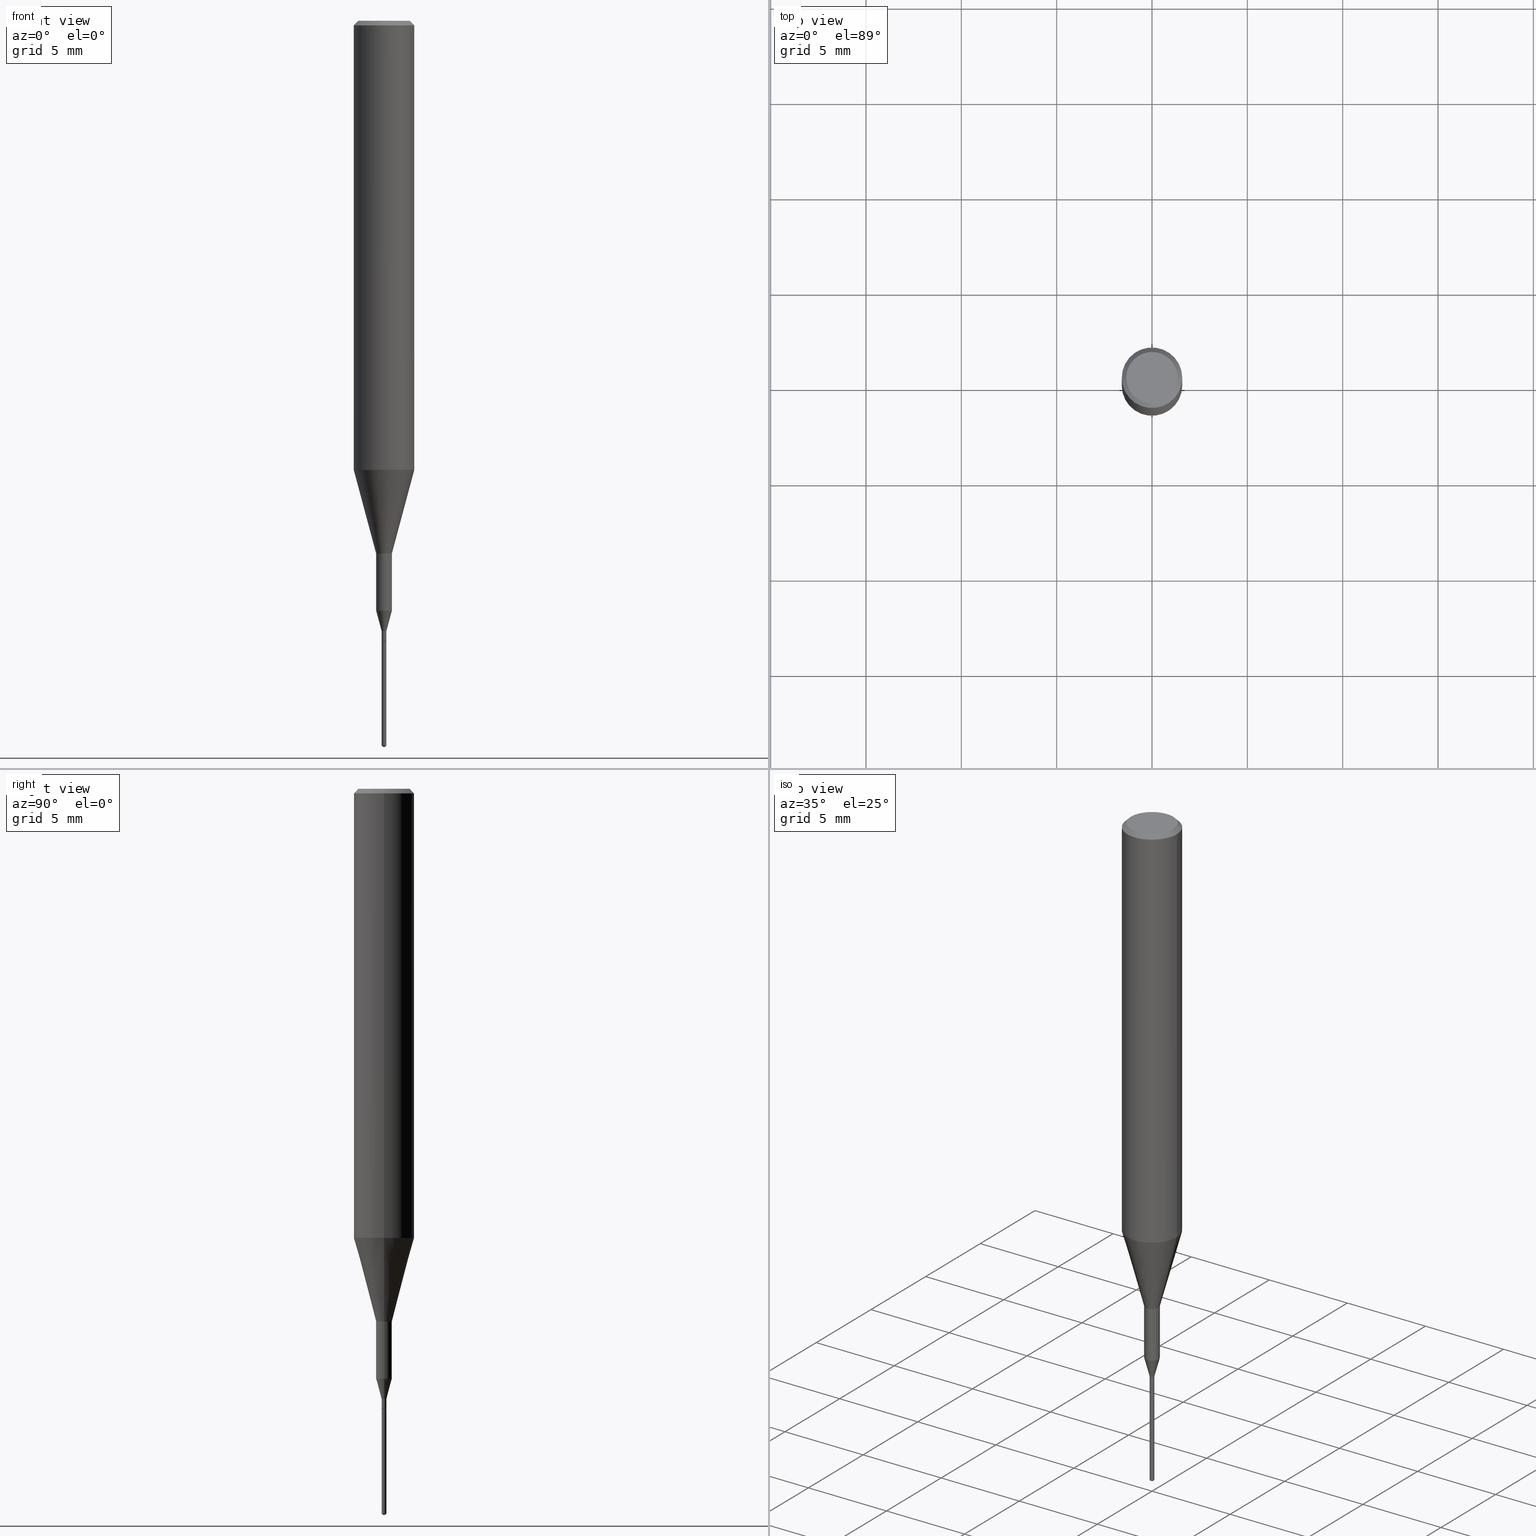
[diagram: canonical four-view strip — front | top / right | iso, engineering-drawing reading convention]
A machine part, canonical four-view strip (front | top / right | iso — engineering-drawing reading convention). The complete STEP part file that produces these views, byte-faithful:
ISO-10303-21;
HEADER;
FILE_DESCRIPTION (( 'STEP AP203' ),
    '1' );
FILE_NAME ('07259.STEP',
    '2024-04-19T13:30:28',
    ( '' ),
    ( '' ),
    'SwSTEP 2.0',
    'SolidWorks 2023',
    '' );
FILE_SCHEMA (( 'CONFIG_CONTROL_DESIGN' ));
ENDSEC;

DATA;
#1 = ADVANCED_FACE ( 'NONE', ( #216 ), #474, .T. ) ;
#2 = DIRECTION ( 'NONE',  ( -2.448441422466597749E-29, 3.487224383137281571E-15, 1.000000000000000000 ) ) ;
#3 = EDGE_CURVE ( 'NONE', #397, #383, #459, .T. ) ;
#4 = AXIS2_PLACEMENT_3D ( 'NONE', #498, #16, #419 ) ;
#5 = CARTESIAN_POINT ( 'NONE',  ( 0.000000000000000000, 0.000000000000000000, 0.000000000000000000 ) ) ;
#6 = FACE_OUTER_BOUND ( 'NONE', #67, .T. ) ;
#7 = EDGE_CURVE ( 'NONE', #307, #517, #443, .T. ) ;
#8 = CARTESIAN_POINT ( 'NONE',  ( 3.130200071916974821E-29, -4.469096113719226630E-15, -1.280000000000000027 ) ) ;
#9 = CARTESIAN_POINT ( 'NONE',  ( 3.128977337513882580E-29, -4.467350373049805126E-15, -1.279500000000000082 ) ) ;
#10 = DIRECTION ( 'NONE',  ( -2.448441422466597749E-29, 3.487224383137281571E-15, 1.000000000000000000 ) ) ;
#11 = AXIS2_PLACEMENT_3D ( 'NONE', #416, #584, #493 ) ;
#12 = DIRECTION ( 'NONE',  ( -6.982962677686265922E-15, -1.000000000000000000, 0.000000000000000000 ) ) ;
#13 = LOCAL_TIME ( 9, 30, 28.00000000000000000, #586 ) ;
#14 = DIRECTION ( 'NONE',  ( -2.445468806185136597E-29, 3.491481338843145583E-15, 1.000000000000000000 ) ) ;
#15 = LINE ( 'NONE', #138, #185 ) ;
#16 = DIRECTION ( 'NONE',  ( -2.445468806185136597E-29, 3.491481338843145583E-15, 1.000000000000000000 ) ) ;
#17 = SECURITY_CLASSIFICATION_LEVEL ( 'unclassified' ) ;
#18 = DIRECTION ( 'NONE',  ( 1.000000000000000000, -6.982962677686266711E-15, 4.875930095424100059E-29 ) ) ;
#19 = EDGE_CURVE ( 'NONE', #222, #269, #352, .T. ) ;
#20 = CYLINDRICAL_SURFACE ( 'NONE', #137, 0.01624999999999999709 ) ;
#21 = ORIENTED_EDGE ( 'NONE', *, *, #479, .T. ) ;
#22 = DIRECTION ( 'NONE',  ( -2.445468806185136597E-29, 3.491481338843145583E-15, 1.000000000000000000 ) ) ;
#23 = FACE_OUTER_BOUND ( 'NONE', #163, .T. ) ;
#24 = ORIENTED_EDGE ( 'NONE', *, *, #45, .F. ) ;
#25 = EDGE_CURVE ( 'NONE', #517, #397, #157, .T. ) ;
#26 = EDGE_CURVE ( 'NONE', #376, #206, #342, .T. ) ;
#27 = CARTESIAN_POINT ( 'NONE',  ( 0.06250000000000011102, -3.674409299134196572E-15, -0.9273926501499395458 ) ) ;
#28 = ADVANCED_FACE ( 'NONE', ( #471 ), #458, .T. ) ;
#29 = VERTEX_POINT ( 'NONE', #490 ) ;
#30 = ORIENTED_EDGE ( 'NONE', *, *, #3, .T. ) ;
#31 =( CONVERSION_BASED_UNIT ( 'INCH', #442 ) LENGTH_UNIT ( ) NAMED_UNIT ( #179 ) );
#32 = LOCAL_TIME ( 9, 30, 28.00000000000000000, #227 ) ;
#33 = VERTEX_POINT ( 'NONE', #538 ) ;
#34 = DATE_AND_TIME ( #590, #32 ) ;
#35 = CARTESIAN_POINT ( 'NONE',  ( 3.081290695793272291E-29, -4.399266486942364120E-15, -1.260000000000000231 ) ) ;
#36 = AXIS2_PLACEMENT_3D ( 'NONE', #345, #382, #427 ) ;
#37 = DIRECTION ( 'NONE',  ( -2.448441422466597749E-29, 3.487224383137281571E-15, 1.000000000000000000 ) ) ;
#38 = VERTEX_POINT ( 'NONE', #544 ) ;
#39 = CYLINDRICAL_SURFACE ( 'NONE', #545, 0.06250000000000005551 ) ;
#40 = CC_DESIGN_PERSON_AND_ORGANIZATION_ASSIGNMENT ( #464, #258, ( #148 ) ) ;
#41 = ORIENTED_EDGE ( 'NONE', *, *, #462, .T. ) ;
#42 = DIRECTION ( 'NONE',  ( -6.982962677686265922E-15, -1.000000000000000000, 0.000000000000000000 ) ) ;
#43 = EDGE_LOOP ( 'NONE', ( #21, #213, #64, #391 ) ) ;
#44 = VECTOR ( 'NONE', #390, 39.37007874015748143 ) ;
#45 = EDGE_CURVE ( 'NONE', #405, #54, #271, .T. ) ;
#46 = AXIS2_PLACEMENT_3D ( 'NONE', #454, #248, #12 ) ;
#47 = CYLINDRICAL_SURFACE ( 'NONE', #151, 0.005000000000000003574 ) ;
#48 = AXIS2_PLACEMENT_3D ( 'NONE', #369, #55, #562 ) ;
#49 = LOCAL_TIME ( 9, 30, 28.00000000000000000, #489 ) ;
#50 = CARTESIAN_POINT ( 'NONE',  ( 3.661501324715846281E-29, -5.225808799001728698E-15, -1.496995696904862116 ) ) ;
#51 = LINE ( 'NONE', #238, #451 ) ;
#52 = ORIENTED_EDGE ( 'NONE', *, *, #504, .T. ) ;
#53 = FACE_OUTER_BOUND ( 'NONE', #125, .T. ) ;
#54 = VERTEX_POINT ( 'NONE', #445 ) ;
#55 = DIRECTION ( 'NONE',  ( -2.445468806185136597E-29, 3.491481338843145583E-15, 1.000000000000000000 ) ) ;
#56 = DIRECTION ( 'NONE',  ( -2.445468806185136597E-29, 3.491481338843145583E-15, 1.000000000000000000 ) ) ;
#57 = DATE_AND_TIME ( #62, #133 ) ;
#58 = ORIENTED_EDGE ( 'NONE', *, *, #240, .F. ) ;
#59 = EDGE_CURVE ( 'NONE', #54, #477, #194, .T. ) ;
#60 = FACE_OUTER_BOUND ( 'NONE', #171, .T. ) ;
#61 = CYLINDRICAL_SURFACE ( 'NONE', #415, 0.01624999999999999709 ) ;
#62 = CALENDAR_DATE ( 2024, 19, 4 ) ;
#63 = EDGE_LOOP ( 'NONE', ( #242, #384, #421, #97 ) ) ;
#64 = ORIENTED_EDGE ( 'NONE', *, *, #413, .F. ) ;
#65 = CARTESIAN_POINT ( 'NONE',  ( 7.076796394983739835E-47, -1.010378970665454992E-32, -2.893840386385196200E-18 ) ) ;
#66 = COORDINATED_UNIVERSAL_TIME_OFFSET ( 5, 0, .BEHIND. ) ;
#67 = EDGE_LOOP ( 'NONE', ( #121, #202 ) ) ;
#68 = CARTESIAN_POINT ( 'NONE',  ( 2.690015686803650369E-29, -3.840629472727460101E-15, -1.100000000000000089 ) ) ;
#69 = DIRECTION ( 'NONE',  ( -2.448441422466597749E-29, 3.487224383137281571E-15, 1.000000000000000000 ) ) ;
#70 = DIRECTION ( 'NONE',  ( 1.000000000000000000, -6.982962677686265922E-15, 0.000000000000000000 ) ) ;
#71 = CC_DESIGN_PERSON_AND_ORGANIZATION_ASSIGNMENT ( #169, #408, ( #486 ) ) ;
#72 = AXIS2_PLACEMENT_3D ( 'NONE', #282, #56, #135 ) ;
#73 = AXIS2_PLACEMENT_3D ( 'NONE', #50, #450, #42 ) ;
#74 = ORIENTED_EDGE ( 'NONE', *, *, #495, .T. ) ;
#75 = ORIENTED_EDGE ( 'NONE', *, *, #218, .T. ) ;
#76 = APPROVAL_STATUS ( 'not_yet_approved' ) ;
#77 = CARTESIAN_POINT ( 'NONE',  ( 2.292627005798582375E-31, -3.273263755165473266E-17, -0.009375000000000069042 ) ) ;
#78 = CARTESIAN_POINT ( 'NONE',  ( 2.292627005798582375E-31, -3.273263755165473266E-17, -0.009375000000000069042 ) ) ;
#79 = VERTEX_POINT ( 'NONE', #232 ) ;
#80 = VERTEX_POINT ( 'NONE', #229 ) ;
#81 = EDGE_LOOP ( 'NONE', ( #530, #164, #188, #310 ) ) ;
#82 = VECTOR ( 'NONE', #518, 39.37007874015748143 ) ;
#83 = ADVANCED_FACE ( 'NONE', ( #409 ), #466, .T. ) ;
#84 = PERSON_AND_ORGANIZATION ( #362, #475 ) ;
#85 = EDGE_CURVE ( 'NONE', #444, #136, #401, .T. ) ;
#86 = CARTESIAN_POINT ( 'NONE',  ( 2.267909797027042920E-29, -3.237974131778804114E-15, -0.9273926501499395458 ) ) ;
#87 = DIRECTION ( 'NONE',  ( 2.445468806185136597E-29, -3.491481338843145583E-15, -1.000000000000000000 ) ) ;
#88 = LOCAL_TIME ( 9, 30, 28.00000000000000000, #66 ) ;
#89 = DIRECTION ( 'NONE',  ( -5.985567269335877382E-15, -0.8571673007021012314, 0.5150380749100724742 ) ) ;
#90 = CARTESIAN_POINT ( 'NONE',  ( -0.004500000000000000527, -4.437121690610021699E-15, -1.280000000000000027 ) ) ;
#91 = FACE_OUTER_BOUND ( 'NONE', #302, .T. ) ;
#92 = CARTESIAN_POINT ( 'NONE',  ( 3.130200071916974821E-29, -4.469096113719226630E-15, -1.280000000000000027 ) ) ;
#93 = FACE_OUTER_BOUND ( 'NONE', #435, .T. ) ;
#94 = CARTESIAN_POINT ( 'NONE',  ( -0.05312499999999999861, 3.873362110279099094E-16, -5.787680772773044021E-18 ) ) ;
#95 = ORIENTED_EDGE ( 'NONE', *, *, #26, .T. ) ;
#96 = EDGE_CURVE ( 'NONE', #444, #79, #212, .T. ) ;
#97 = ORIENTED_EDGE ( 'NONE', *, *, #140, .F. ) ;
#98 = DIRECTION ( 'NONE',  ( -2.445468806185136597E-29, 3.491481338843145583E-15, 1.000000000000000000 ) ) ;
#99 = DIRECTION ( 'NONE',  ( -2.445468806185136597E-29, 3.491481338843145583E-15, 1.000000000000000000 ) ) ;
#100 = CIRCLE ( 'NONE', #514, 0.06250000000000011102 ) ;
#101 = AXIS2_PLACEMENT_3D ( 'NONE', #196, #503, #323 ) ;
#102 = ADVANCED_FACE ( 'NONE', ( #276 ), #20, .T. ) ;
#103 = EDGE_CURVE ( 'NONE', #38, #29, #318, .T. ) ;
#104 = FACE_OUTER_BOUND ( 'NONE', #63, .T. ) ;
#105 = CARTESIAN_POINT ( 'NONE',  ( 3.672662133699897044E-29, -5.230836574705923146E-15, -1.500000000000000222 ) ) ;
#106 = CC_DESIGN_APPROVAL ( #166, ( #148 ) ) ;
#107 = EDGE_LOOP ( 'NONE', ( #220, #30, #270, #346 ) ) ;
#108 = DIRECTION ( 'NONE',  ( -6.982962677686265922E-15, -1.000000000000000000, 0.000000000000000000 ) ) ;
#109 = EDGE_CURVE ( 'NONE', #136, #576, #115, .T. ) ;
#110 = AXIS2_PLACEMENT_3D ( 'NONE', #373, #10, #467 ) ;
#111 = ORIENTED_EDGE ( 'NONE', *, *, #301, .F. ) ;
#112 = DIRECTION ( 'NONE',  ( -0.7071067811865452413, 2.468850131082233000E-15, -0.7071067811865497932 ) ) ;
#113 = DIRECTION ( 'NONE',  ( -2.448441422466597749E-29, 3.487224383137281571E-15, 1.000000000000000000 ) ) ;
#114 =( LENGTH_UNIT ( ) NAMED_UNIT ( * ) SI_UNIT ( $, .METRE. ) );
#115 = LINE ( 'NONE', #396, #129 ) ;
#116 = ORIENTED_EDGE ( 'NONE', *, *, #541, .F. ) ;
#117 = PRODUCT_RELATED_PRODUCT_CATEGORY ( 'detail', '', ( #375 ) ) ;
#118 = EDGE_LOOP ( 'NONE', ( #116, #356, #75, #554 ) ) ;
#119 = ADVANCED_FACE ( 'NONE', ( #573 ), #439, .T. ) ;
#120 = AXIS2_PLACEMENT_3D ( 'NONE', #78, #165, #399 ) ;
#121 = ORIENTED_EDGE ( 'NONE', *, *, #462, .F. ) ;
#122 = PERSON_AND_ORGANIZATION ( #362, #475 ) ;
#123 = CARTESIAN_POINT ( 'NONE',  ( 2.978616290171935481E-29, -4.252674647252150246E-15, -1.218014428414850414 ) ) ;
#124 = ADVANCED_FACE ( 'NONE', ( #241 ), #453, .T. ) ;
#125 = EDGE_LOOP ( 'NONE', ( #525, #74, #563, #589 ) ) ;
#126 = APPROVAL ( #223, 'UNSPECIFIED' ) ;
#127 = CIRCLE ( 'NONE', #120, 0.06250000000000000000 ) ;
#128 = CIRCLE ( 'NONE', #410, 0.005000000000000014849 ) ;
#129 = VECTOR ( 'NONE', #162, 39.37007874015748143 ) ;
#130 = DIRECTION ( 'NONE',  ( 1.000000000000000000, 0.000000000000000000, 0.000000000000000000 ) ) ;
#131 = AXIS2_PLACEMENT_3D ( 'NONE', #123, #587, #180 ) ;
#132 = MANIFOLD_SOLID_BREP ( 'Body-Move/Copy2[1]', #231 ) ;
#133 = LOCAL_TIME ( 9, 30, 28.00000000000000000, #283 ) ;
#134 =( GEOMETRIC_REPRESENTATION_CONTEXT ( 3 ) GLOBAL_UNCERTAINTY_ASSIGNED_CONTEXT ( ( #303 ) ) GLOBAL_UNIT_ASSIGNED_CONTEXT ( ( #31, #273, #476 ) ) REPRESENTATION_CONTEXT ( 'NONE', 'WORKASPACE' ) );
#135 = DIRECTION ( 'NONE',  ( 1.000000000000000000, -6.982962677686266711E-15, 4.875930095424100059E-29 ) ) ;
#136 = VERTEX_POINT ( 'NONE', #326 ) ;
#137 = AXIS2_PLACEMENT_3D ( 'NONE', #201, #516, #252 ) ;
#138 = CARTESIAN_POINT ( 'NONE',  ( 0.06250000000000005551, -4.364351673553920638E-16, 3.047610484872462323E-30 ) ) ;
#139 = CIRCLE ( 'NONE', #4, 0.01624999999999999709 ) ;
#140 = EDGE_CURVE ( 'NONE', #79, #576, #306, .T. ) ;
#141 = DIRECTION ( 'NONE',  ( -2.445468806185136597E-29, 3.491481338843145583E-15, 1.000000000000000000 ) ) ;
#142 = CARTESIAN_POINT ( 'NONE',  ( 0.06250000000000000000, -4.615137624123754923E-16, -0.009375000000000069042 ) ) ;
#143 = DIRECTION ( 'NONE',  ( 1.000000000000000000, -6.982962677686266711E-15, 0.000000000000000000 ) ) ;
#144 = EDGE_CURVE ( 'NONE', #376, #267, #200, .T. ) ;
#145 = ORIENTED_EDGE ( 'NONE', *, *, #26, .F. ) ;
#146 = CARTESIAN_POINT ( 'NONE',  ( -0.004500000000000000527, -4.434472463435912075E-15, -1.280000000000000027 ) ) ;
#147 = DIRECTION ( 'NONE',  ( -1.000000000000000000, 6.982962677686265922E-15, -4.876176775795935793E-29 ) ) ;
#148 = SECURITY_CLASSIFICATION ( '', '', #17 ) ;
#149 = APPROVAL_ROLE ( '' ) ;
#150 = DIRECTION ( 'NONE',  ( -2.445468806185136597E-29, 3.491481338843145583E-15, 1.000000000000000000 ) ) ;
#151 = AXIS2_PLACEMENT_3D ( 'NONE', #5, #321, #275 ) ;
#152 = ORIENTED_EDGE ( 'NONE', *, *, #190, .F. ) ;
#153 = DIRECTION ( 'NONE',  ( -2.448441422466597749E-29, 3.487224383137281571E-15, 1.000000000000000000 ) ) ;
#154 = CARTESIAN_POINT ( 'NONE',  ( 3.130200071916974821E-29, -4.469096113719226630E-15, -1.280000000000000027 ) ) ;
#155 = ORIENTED_EDGE ( 'NONE', *, *, #430, .T. ) ;
#156 = CC_DESIGN_DATE_AND_TIME_ASSIGNMENT ( #292, #395, ( #148 ) ) ;
#157 = LINE ( 'NONE', #527, #177 ) ;
#158 = VECTOR ( 'NONE', #515, 39.37007874015748143 ) ;
#159 = ORIENTED_EDGE ( 'NONE', *, *, #378, .F. ) ;
#160 = DIRECTION ( 'NONE',  ( 1.000000000000000000, -6.982962677686311676E-15, 0.000000000000000000 ) ) ;
#161 = FACE_OUTER_BOUND ( 'NONE', #585, .T. ) ;
#162 = DIRECTION ( 'NONE',  ( 0.7071067811866128539, -2.468850131082941397E-15, 0.7071067811864821806 ) ) ;
#163 = EDGE_LOOP ( 'NONE', ( #155, #407, #293, #575 ) ) ;
#164 = ORIENTED_EDGE ( 'NONE', *, *, #541, .T. ) ;
#165 = DIRECTION ( 'NONE',  ( -2.445468806185136597E-29, 3.491481338843145583E-15, 1.000000000000000000 ) ) ;
#166 = APPROVAL ( #286, 'UNSPECIFIED' ) ;
#167 = ADVANCED_FACE ( 'NONE', ( #53 ), #61, .T. ) ;
#168 = ORIENTED_EDGE ( 'NONE', *, *, #524, .T. ) ;
#169 = PERSON_AND_ORGANIZATION ( #362, #475 ) ;
#170 = DIRECTION ( 'NONE',  ( -2.445468806185136597E-29, 3.491481338843145583E-15, 1.000000000000000000 ) ) ;
#171 = EDGE_LOOP ( 'NONE', ( #52, #582, #447, #226 ) ) ;
#172 = CALENDAR_DATE ( 2024, 19, 4 ) ;
#173 = ADVANCED_FACE ( 'NONE', ( #420 ), #234, .T. ) ;
#174 = ADVANCED_FACE ( 'NONE', ( #93 ), #247, .T. ) ;
#175 = EDGE_LOOP ( 'NONE', ( #314, #304 ) ) ;
#176 = DATE_AND_TIME ( #308, #13 ) ;
#177 = VECTOR ( 'NONE', #398, 39.37007874015748143 ) ;
#178 = CONICAL_SURFACE ( 'NONE', #233, 0.004500000000000000527, 0.7853981633975407606 ) ;
#179 = DIMENSIONAL_EXPONENTS ( 1.000000000000000000, 0.000000000000000000, 0.000000000000000000, 0.000000000000000000, 0.000000000000000000, 0.000000000000000000, 0.000000000000000000 ) ;
#180 = DIRECTION ( 'NONE',  ( 1.000000000000000000, -6.982962677686258033E-15, 0.000000000000000000 ) ) ;
#181 = CC_DESIGN_PERSON_AND_ORGANIZATION_ASSIGNMENT ( #245, #507, ( #349 ) ) ;
#182 = DIRECTION ( 'NONE',  ( -6.982962677686265922E-15, -1.000000000000000000, 0.000000000000000000 ) ) ;
#183 = CARTESIAN_POINT ( 'NONE',  ( -9.272647440831351840E-28, 1.320560130707024342E-13, 37.87007874015748143 ) ) ;
#184 = PLANE ( 'NONE',  #101 ) ;
#185 = VECTOR ( 'NONE', #469, 39.37007874015748143 ) ;
#186 = DIRECTION ( 'NONE',  ( -2.438088387897960049E-29, 3.491481338843145188E-15, 1.000000000000000000 ) ) ;
#187 = EDGE_CURVE ( 'NONE', #33, #269, #496, .T. ) ;
#188 = ORIENTED_EDGE ( 'NONE', *, *, #335, .F. ) ;
#189 = VECTOR ( 'NONE', #113, 39.37007874015748143 ) ;
#190 = EDGE_CURVE ( 'NONE', #79, #517, #502, .T. ) ;
#191 = DIRECTION ( 'NONE',  ( 1.000000000000000000, -6.982962677686344019E-15, 0.000000000000000000 ) ) ;
#192 = DIRECTION ( 'NONE',  ( -2.445468806185136597E-29, 3.491481338843145583E-15, 1.000000000000000000 ) ) ;
#193 = ORIENTED_EDGE ( 'NONE', *, *, #144, .T. ) ;
#194 = CIRCLE ( 'NONE', #73, 0.004999999999999999237 ) ;
#195 = DIRECTION ( 'NONE',  ( 1.000000000000000000, -6.982962677686267499E-15, 4.876176775795936353E-29 ) ) ;
#196 = CARTESIAN_POINT ( 'NONE',  ( 3.130200071916974821E-29, -4.469096113719226630E-15, -1.280000000000000027 ) ) ;
#197 = AXIS2_PLACEMENT_3D ( 'NONE', #506, #153, #108 ) ;
#198 = APPROVAL_DATE_TIME ( #57, #166 ) ;
#199 = CARTESIAN_POINT ( 'NONE',  ( 1.415359278996747967E-46, -2.020757941330909984E-32, -5.787680772770392401E-18 ) ) ;
#200 = CIRCLE ( 'NONE', #379, 0.05312499999999999861 ) ;
#201 = CARTESIAN_POINT ( 'NONE',  ( 0.000000000000000000, 0.000000000000000000, 0.000000000000000000 ) ) ;
#202 = ORIENTED_EDGE ( 'NONE', *, *, #85, .F. ) ;
#203 = VECTOR ( 'NONE', #37, 39.37007874015748143 ) ;
#204 = DIRECTION ( 'NONE',  ( 1.000000000000000000, -6.982962677686224112E-15, 0.000000000000000000 ) ) ;
#205 = DIRECTION ( 'NONE',  ( -6.982962677686266711E-15, -1.000000000000000000, 3.468864327941735815E-15 ) ) ;
#206 = VERTEX_POINT ( 'NONE', #423 ) ;
#207 = CARTESIAN_POINT ( 'NONE',  ( 0.06250000000000011102, -3.674409299134196572E-15, -0.9273926501499395458 ) ) ;
#208 = CARTESIAN_POINT ( 'NONE',  ( -0.01624999999999999709, 1.154631945610162595E-16, -7.993269521664220284E-31 ) ) ;
#209 = AXIS2_PLACEMENT_3D ( 'NONE', #569, #431, #253 ) ;
#210 = VECTOR ( 'NONE', #511, 39.37007874015748143 ) ;
#211 = CALENDAR_DATE ( 2024, 19, 4 ) ;
#212 = LINE ( 'NONE', #90, #237 ) ;
#213 = ORIENTED_EDGE ( 'NONE', *, *, #548, .T. ) ;
#214 = AXIS2_PLACEMENT_3D ( 'NONE', #543, #87, #402 ) ;
#215 = CC_DESIGN_DATE_AND_TIME_ASSIGNMENT ( #176, #483, ( #486 ) ) ;
#216 = FACE_OUTER_BOUND ( 'NONE', #284, .T. ) ;
#217 = MECHANICAL_CONTEXT ( 'NONE', #250, 'mechanical' ) ;
#218 = EDGE_CURVE ( 'NONE', #269, #404, #15, .T. ) ;
#219 = ORIENTED_EDGE ( 'NONE', *, *, #389, .T. ) ;
#220 = ORIENTED_EDGE ( 'NONE', *, *, #495, .F. ) ;
#221 = CARTESIAN_POINT ( 'NONE',  ( 3.081290695793272291E-29, -4.399266486942364120E-15, -1.260000000000000231 ) ) ;
#222 = VERTEX_POINT ( 'NONE', #460 ) ;
#223 = APPROVAL_STATUS ( 'not_yet_approved' ) ;
#224 = APPROVAL_PERSON_ORGANIZATION ( #311, #279, #438 ) ;
#225 = FACE_OUTER_BOUND ( 'NONE', #118, .T. ) ;
#226 = ORIENTED_EDGE ( 'NONE', *, *, #244, .F. ) ;
#227 = COORDINATED_UNIVERSAL_TIME_OFFSET ( 5, 0, .BEHIND. ) ;
#228 = CC_DESIGN_PERSON_AND_ORGANIZATION_ASSIGNMENT ( #361, #317, ( #375 ) ) ;
#229 = CARTESIAN_POINT ( 'NONE',  ( -0.01624999999999999709, -3.931188865428788594E-15, -1.100000000000000089 ) ) ;
#230 = EDGE_LOOP ( 'NONE', ( #387, #539, #501, #393 ) ) ;
#231 = CLOSED_SHELL ( 'NONE', ( #261, #324, #119, #174, #344 ) ) ;
#232 = CARTESIAN_POINT ( 'NONE',  ( -0.004999999999999991430, -4.431823236261800085E-15, -1.279500000000000082 ) ) ;
#233 = AXIS2_PLACEMENT_3D ( 'NONE', #92, #251, #429 ) ;
#234 = CONICAL_SURFACE ( 'NONE', #480, 0.01625000000000000056, 0.2617993877991491858 ) ;
#235 = CARTESIAN_POINT ( 'NONE',  ( 3.661501324715846281E-29, -5.225808799001728698E-15, -1.496995696904862116 ) ) ;
#236 = ADVANCED_FACE ( 'NONE', ( #564 ), #380, .F. ) ;
#237 = VECTOR ( 'NONE', #500, 39.37007874015748143 ) ;
#238 = CARTESIAN_POINT ( 'NONE',  ( 3.665052236019357010E-29, -5.241734381312934415E-15, -1.500000000000000222 ) ) ;
#239 = AXIS2_PLACEMENT_3D ( 'NONE', #561, #22, #204 ) ;
#240 = EDGE_CURVE ( 'NONE', #267, #404, #333, .T. ) ;
#241 = FACE_OUTER_BOUND ( 'NONE', #557, .T. ) ;
#242 = ORIENTED_EDGE ( 'NONE', *, *, #96, .F. ) ;
#243 = DIRECTION ( 'NONE',  ( 1.000000000000000000, -6.982962677686224112E-15, 0.000000000000000000 ) ) ;
#244 = EDGE_CURVE ( 'NONE', #576, #307, #336, .T. ) ;
#245 = PERSON_AND_ORGANIZATION ( #362, #475 ) ;
#246 = EDGE_LOOP ( 'NONE', ( #485, #219, #351, #338 ) ) ;
#247 = CYLINDRICAL_SURFACE ( 'NONE', #110, 0.005000000000000000104 ) ;
#248 = DIRECTION ( 'NONE',  ( -2.448441422466597749E-29, 3.487224383137281571E-15, 1.000000000000000000 ) ) ;
#249 = ORIENTED_EDGE ( 'NONE', *, *, #319, .F. ) ;
#250 = APPLICATION_CONTEXT ( 'configuration controlled 3d designs of mechanical parts and assemblies' ) ;
#251 = DIRECTION ( 'NONE',  ( -2.445468806185136597E-29, 3.491481338843145583E-15, 1.000000000000000000 ) ) ;
#252 = DIRECTION ( 'NONE',  ( 1.000000000000000000, -6.982962677686267499E-15, 4.876176775795936353E-29 ) ) ;
#253 = DIRECTION ( 'NONE',  ( 1.000000000000000000, -6.982962677686258033E-15, 0.000000000000000000 ) ) ;
#254 = DIRECTION ( 'NONE',  ( -2.445468806185136597E-29, 3.491481338843145583E-15, 1.000000000000000000 ) ) ;
#255 = DIRECTION ( 'NONE',  ( -2.445468806185136597E-29, 3.491481338843145583E-15, 1.000000000000000000 ) ) ;
#256 = ORIENTED_EDGE ( 'NONE', *, *, #244, .T. ) ;
#257 = VECTOR ( 'NONE', #312, 39.37007874015748854 ) ;
#258 = PERSON_AND_ORGANIZATION_ROLE ( 'classification_officer' ) ;
#259 = ADVANCED_FACE ( 'NONE', ( #104 ), #178, .T. ) ;
#260 = ORIENTED_EDGE ( 'NONE', *, *, #546, .F. ) ;
#261 = ADVANCED_FACE ( 'NONE', ( #23 ), #331, .T. ) ;
#262 = CIRCLE ( 'NONE', #478, 0.01625000000000000056 ) ;
#263 = CYLINDRICAL_SURFACE ( 'NONE', #11, 0.06250000000000005551 ) ;
#264 = ORIENTED_EDGE ( 'NONE', *, *, #504, .F. ) ;
#265 = DIRECTION ( 'NONE',  ( -0.2588190451025214611, 5.211531920934550253E-15, 0.9659258262890679791 ) ) ;
#266 = CC_DESIGN_APPROVAL ( #126, ( #349 ) ) ;
#267 = VERTEX_POINT ( 'NONE', #296 ) ;
#268 = DIRECTION ( 'NONE',  ( -2.445468806185136597E-29, 3.491481338843145583E-15, 1.000000000000000000 ) ) ;
#269 = VERTEX_POINT ( 'NONE', #27 ) ;
#270 = ORIENTED_EDGE ( 'NONE', *, *, #446, .T. ) ;
#271 = LINE ( 'NONE', #494, #257 ) ;
#272 = APPROVAL_PERSON_ORGANIZATION ( #572, #166, #149 ) ;
#273 =( NAMED_UNIT ( * ) PLANE_ANGLE_UNIT ( ) SI_UNIT ( $, .RADIAN. ) );
#274 = ADVANCED_FACE ( 'NONE', ( #280 ), #39, .T. ) ;
#275 = DIRECTION ( 'NONE',  ( 1.000000000000000000, -6.982962677686265922E-15, 4.876176775795935793E-29 ) ) ;
#276 = FACE_OUTER_BOUND ( 'NONE', #107, .T. ) ;
#277 = AXIS2_PLACEMENT_3D ( 'NONE', #354, #481, #130 ) ;
#278 = FACE_OUTER_BOUND ( 'NONE', #175, .T. ) ;
#279 = APPROVAL ( #76, 'UNSPECIFIED' ) ;
#280 = FACE_OUTER_BOUND ( 'NONE', #81, .T. ) ;
#281 = CARTESIAN_POINT ( 'NONE',  ( 3.130200071916974821E-29, -4.469096113719226630E-15, -1.280000000000000027 ) ) ;
#282 = CARTESIAN_POINT ( 'NONE',  ( 1.415359278996747967E-46, -2.020757941330909984E-32, -5.787680772770392401E-18 ) ) ;
#283 = COORDINATED_UNIVERSAL_TIME_OFFSET ( 5, 0, .BEHIND. ) ;
#284 = EDGE_LOOP ( 'NONE', ( #159, #437, #578, #145 ) ) ;
#285 = CC_DESIGN_APPROVAL ( #279, ( #486 ) ) ;
#286 = APPROVAL_STATUS ( 'not_yet_approved' ) ;
#287 = AXIS2_PLACEMENT_3D ( 'NONE', #367, #99, #143 ) ;
#288 = ORIENTED_EDGE ( 'NONE', *, *, #378, .T. ) ;
#289 = VECTOR ( 'NONE', #112, 39.37007874015748143 ) ;
#290 = DIRECTION ( 'NONE',  ( 1.000000000000000000, -6.982962677686258033E-15, 0.000000000000000000 ) ) ;
#291 = CIRCLE ( 'NONE', #46, 0.005000000000000000104 ) ;
#292 = DATE_AND_TIME ( #211, #88 ) ;
#293 = ORIENTED_EDGE ( 'NONE', *, *, #103, .F. ) ;
#294 = ORIENTED_EDGE ( 'NONE', *, *, #360, .T. ) ;
#295 = DIRECTION ( 'NONE',  ( -2.445468806185136877E-29, 3.491481338843145188E-15, 1.000000000000000000 ) ) ;
#296 = CARTESIAN_POINT ( 'NONE',  ( 0.05312499999999999861, -4.129888592719939842E-16, -5.787680772767651417E-18 ) ) ;
#297 = ORIENTED_EDGE ( 'NONE', *, *, #360, .F. ) ;
#298 = ADVANCED_BREP_SHAPE_REPRESENTATION ( '07259', ( #132, #327, #277 ), #134 ) ;
#299 = ORIENTED_EDGE ( 'NONE', *, *, #7, .T. ) ;
#300 = FACE_OUTER_BOUND ( 'NONE', #43, .T. ) ;
#301 = EDGE_CURVE ( 'NONE', #29, #38, #291, .T. ) ;
#302 = EDGE_LOOP ( 'NONE', ( #297, #580, #487 ) ) ;
#303 = UNCERTAINTY_MEASURE_WITH_UNIT (LENGTH_MEASURE( 1.000000000000000082E-05 ), #31, 'distance_accuracy_value', 'NONE');
#304 = ORIENTED_EDGE ( 'NONE', *, *, #301, .T. ) ;
#305 = VECTOR ( 'NONE', #295, 39.37007874015748143 ) ;
#306 = CIRCLE ( 'NONE', #48, 0.004999999999999991430 ) ;
#307 = VERTEX_POINT ( 'NONE', #424 ) ;
#308 = CALENDAR_DATE ( 2024, 19, 4 ) ;
#309 = CARTESIAN_POINT ( 'NONE',  ( -0.005000000000000014849, -4.397781293208080371E-15, -1.260000000000000231 ) ) ;
#310 = ORIENTED_EDGE ( 'NONE', *, *, #218, .F. ) ;
#311 = PERSON_AND_ORGANIZATION ( #362, #475 ) ;
#312 = DIRECTION ( 'NONE',  ( 6.090539988449712960E-15, 0.8571673007021047841, 0.5150380749100665900 ) ) ;
#313 = AXIS2_PLACEMENT_3D ( 'NONE', #235, #2, #182 ) ;
#314 = ORIENTED_EDGE ( 'NONE', *, *, #103, .T. ) ;
#315 = DESIGN_CONTEXT ( 'detailed design', #456, 'design' ) ;
#316 = AXIS2_PLACEMENT_3D ( 'NONE', #330, #505, #532 ) ;
#317 = PERSON_AND_ORGANIZATION_ROLE ( 'design_owner' ) ;
#318 = CIRCLE ( 'NONE', #455, 0.005000000000000000104 ) ;
#319 = EDGE_CURVE ( 'NONE', #307, #383, #461, .T. ) ;
#320 = DIRECTION ( 'NONE',  ( -2.445468806185136877E-29, 3.491481338843145188E-15, 1.000000000000000000 ) ) ;
#321 = DIRECTION ( 'NONE',  ( -2.445468806185136597E-29, 3.491481338843145583E-15, 1.000000000000000000 ) ) ;
#322 = LINE ( 'NONE', #484, #203 ) ;
#323 = DIRECTION ( 'NONE',  ( 6.982962677686265922E-15, 1.000000000000000000, -3.487224383137281571E-15 ) ) ;
#324 = ADVANCED_FACE ( 'NONE', ( #91 ), #542, .T. ) ;
#325 = CARTESIAN_POINT ( 'NONE',  ( 0.01625000000000000056, -4.366147790764551922E-15, -1.218014428414850414 ) ) ;
#326 = CARTESIAN_POINT ( 'NONE',  ( 0.004500000000000000527, -4.500519445768814483E-15, -1.280000000000000027 ) ) ;
#327 = MANIFOLD_SOLID_BREP ( 'Body-Move/Copy2[2]', #365 ) ;
#328 = DIRECTION ( 'NONE',  ( 1.000000000000000000, -6.982962677686266711E-15, 4.876176775795935232E-29 ) ) ;
#329 = ORIENTED_EDGE ( 'NONE', *, *, #109, .F. ) ;
#330 = CARTESIAN_POINT ( 'NONE',  ( 2.267909797027042920E-29, -3.237974131778804114E-15, -0.9273926501499395458 ) ) ;
#331 = CYLINDRICAL_SURFACE ( 'NONE', #197, 0.005000000000000000104 ) ;
#332 = CARTESIAN_POINT ( 'NONE',  ( 0.01624999999999999709, -1.134731435124018242E-16, 7.923787260668394963E-31 ) ) ;
#333 = LINE ( 'NONE', #142, #82 ) ;
#334 = CARTESIAN_POINT ( 'NONE',  ( -0.01625000000000000056, -4.137211452691134060E-15, -1.218014428414850414 ) ) ;
#335 = EDGE_CURVE ( 'NONE', #404, #206, #552, .T. ) ;
#336 = LINE ( 'NONE', #425, #158 ) ;
#337 = CIRCLE ( 'NONE', #313, 0.004999999999999999237 ) ;
#338 = ORIENTED_EDGE ( 'NONE', *, *, #187, .F. ) ;
#339 = PRODUCT_DEFINITION_SHAPE ( 'NONE', 'NONE',  #486 ) ;
#340 = CARTESIAN_POINT ( 'NONE',  ( 2.978616290171935481E-29, -4.252674647252150246E-15, -1.218014428414850414 ) ) ;
#341 = AXIS2_PLACEMENT_3D ( 'NONE', #510, #385, #343 ) ;
#342 = LINE ( 'NONE', #520, #289 ) ;
#343 = DIRECTION ( 'NONE',  ( 1.000000000000000000, -6.982962677686265922E-15, 4.876176775795935793E-29 ) ) ;
#344 = ADVANCED_FACE ( 'NONE', ( #278 ), #184, .F. ) ;
#345 = CARTESIAN_POINT ( 'NONE',  ( 3.130200071916974821E-29, -4.469096113719226630E-15, -1.280000000000000027 ) ) ;
#346 = ORIENTED_EDGE ( 'NONE', *, *, #389, .F. ) ;
#347 = CARTESIAN_POINT ( 'NONE',  ( -9.272647440831351840E-28, 1.320560130707024342E-13, 37.87007874015748143 ) ) ;
#348 = ORIENTED_EDGE ( 'NONE', *, *, #499, .F. ) ;
#349 = PRODUCT_DEFINITION_FORMATION_WITH_SPECIFIED_SOURCE ( 'ANY', '', #375, .NOT_KNOWN. ) ;
#350 = DIRECTION ( 'NONE',  ( 2.445468806185136597E-29, -3.491481338843145583E-15, -1.000000000000000000 ) ) ;
#351 = ORIENTED_EDGE ( 'NONE', *, *, #19, .T. ) ;
#352 = LINE ( 'NONE', #207, #388 ) ;
#353 = CIRCLE ( 'NONE', #239, 0.004500000000000000527 ) ;
#354 = CARTESIAN_POINT ( 'NONE',  ( 0.000000000000000000, 0.000000000000000000, 0.000000000000000000 ) ) ;
#355 = CC_DESIGN_PERSON_AND_ORGANIZATION_ASSIGNMENT ( #122, #488, ( #349 ) ) ;
#356 = ORIENTED_EDGE ( 'NONE', *, *, #187, .T. ) ;
#357 = DATE_AND_TIME ( #172, #49 ) ;
#358 = AXIS2_PLACEMENT_3D ( 'NONE', #9, #141, #191 ) ;
#359 = CARTESIAN_POINT ( 'NONE',  ( 2.267909797027042920E-29, -3.237974131778804114E-15, -0.9273926501499395458 ) ) ;
#360 = EDGE_CURVE ( 'NONE', #405, #477, #51, .T. ) ;
#361 = PERSON_AND_ORGANIZATION ( #362, #475 ) ;
#362 = PERSON ( 'UNSPECIFIED', 'UNSPECIFIED', 'UNSPECIFIED', ('UNSPECIFIED'), ('UNSPECIFIED'), ('UNSPECIFIED') ) ;
#363 = AXIS2_PLACEMENT_3D ( 'NONE', #8, #186, #370 ) ;
#364 = DIRECTION ( 'NONE',  ( -6.982962677686266711E-15, -1.000000000000000000, 3.468864327941735815E-15 ) ) ;
#365 = CLOSED_SHELL ( 'NONE', ( #1, #274, #509, #167, #173, #448, #124, #403, #259, #422, #28, #102, #83, #558, #571, #236 ) ) ;
#366 = AXIS2_PLACEMENT_3D ( 'NONE', #359, #414, #70 ) ;
#367 = CARTESIAN_POINT ( 'NONE',  ( 2.292627005798582375E-31, -3.273263755165473266E-17, -0.009375000000000069042 ) ) ;
#368 = AXIS2_PLACEMENT_3D ( 'NONE', #463, #549, #465 ) ;
#369 = CARTESIAN_POINT ( 'NONE',  ( 3.128977337513882580E-29, -4.467350373049805126E-15, -1.279500000000000082 ) ) ;
#370 = DIRECTION ( 'NONE',  ( 1.000000000000000000, -6.982962677686265922E-15, 4.876176775795935793E-29 ) ) ;
#371 = VECTOR ( 'NONE', #265, 39.37007874015748143 ) ;
#372 = LINE ( 'NONE', #208, #44 ) ;
#373 = CARTESIAN_POINT ( 'NONE',  ( 3.130200071916974821E-29, -4.469096113719226630E-15, -1.280000000000000027 ) ) ;
#374 = CARTESIAN_POINT ( 'NONE',  ( 0.01625000000000000056, -4.366147790764551922E-15, -1.218014428414850414 ) ) ;
#375 = PRODUCT ( '07259', '07259', '', ( #217 ) ) ;
#376 = VERTEX_POINT ( 'NONE', #94 ) ;
#377 = DIRECTION ( 'NONE',  ( 2.438088387897960049E-29, -3.491481338843145188E-15, -1.000000000000000000 ) ) ;
#378 = EDGE_CURVE ( 'NONE', #267, #376, #565, .T. ) ;
#379 = AXIS2_PLACEMENT_3D ( 'NONE', #199, #255, #18 ) ;
#380 = PLANE ( 'NONE',  #508 ) ;
#381 = SHAPE_DEFINITION_REPRESENTATION ( #339, #298 ) ;
#382 = DIRECTION ( 'NONE',  ( -2.445468806185136597E-29, 3.491481338843145583E-15, 1.000000000000000000 ) ) ;
#383 = VERTEX_POINT ( 'NONE', #325 ) ;
#384 = ORIENTED_EDGE ( 'NONE', *, *, #85, .T. ) ;
#385 = DIRECTION ( 'NONE',  ( -2.445468806185136597E-29, 3.491481338843145583E-15, 1.000000000000000000 ) ) ;
#386 = CARTESIAN_POINT ( 'NONE',  ( 0.000000000000000000, 0.000000000000000000, 0.000000000000000000 ) ) ;
#387 = ORIENTED_EDGE ( 'NONE', *, *, #25, .F. ) ;
#388 = VECTOR ( 'NONE', #566, 39.37007874015748143 ) ;
#389 = EDGE_CURVE ( 'NONE', #80, #222, #139, .T. ) ;
#390 = DIRECTION ( 'NONE',  ( -2.445468806185136877E-29, 3.491481338843145188E-15, 1.000000000000000000 ) ) ;
#391 = ORIENTED_EDGE ( 'NONE', *, *, #19, .F. ) ;
#392 = CIRCLE ( 'NONE', #551, 0.01624999999999999709 ) ;
#393 = ORIENTED_EDGE ( 'NONE', *, *, #3, .F. ) ;
#394 = CONICAL_SURFACE ( 'NONE', #214, 0.06250000000000000000, 0.7853981633974450594 ) ;
#395 = DATE_TIME_ROLE ( 'classification_date' ) ;
#396 = CARTESIAN_POINT ( 'NONE',  ( 0.004500000000000000527, -4.500519445768814483E-15, -1.280000000000000027 ) ) ;
#397 = VERTEX_POINT ( 'NONE', #334 ) ;
#398 = DIRECTION ( 'NONE',  ( -0.2588190451025205174, 5.211531920934544731E-15, 0.9659258262890684232 ) ) ;
#399 = DIRECTION ( 'NONE',  ( 1.000000000000000000, -6.982962677686266711E-15, 0.000000000000000000 ) ) ;
#400 = EDGE_LOOP ( 'NONE', ( #193, #288 ) ) ;
#401 = CIRCLE ( 'NONE', #36, 0.004500000000000000527 ) ;
#402 = DIRECTION ( 'NONE',  ( -1.000000000000000000, 6.982962677686266711E-15, 0.000000000000000000 ) ) ;
#403 = ADVANCED_FACE ( 'NONE', ( #6 ), #512, .F. ) ;
#404 = VERTEX_POINT ( 'NONE', #550 ) ;
#405 = VERTEX_POINT ( 'NONE', #105 ) ;
#406 = CARTESIAN_POINT ( 'NONE',  ( -0.06250000000000005551, 4.440892098500630106E-16, -3.074334431409318916E-30 ) ) ;
#407 = ORIENTED_EDGE ( 'NONE', *, *, #499, .T. ) ;
#408 = PERSON_AND_ORGANIZATION_ROLE ( 'creator' ) ;
#409 = FACE_OUTER_BOUND ( 'NONE', #246, .T. ) ;
#410 = AXIS2_PLACEMENT_3D ( 'NONE', #221, #268, #581 ) ;
#411 = ORIENTED_EDGE ( 'NONE', *, *, #59, .F. ) ;
#412 = APPLICATION_PROTOCOL_DEFINITION ( 'international standard', 'config_control_design', 1994, #456 ) ;
#413 = EDGE_CURVE ( 'NONE', #269, #33, #100, .T. ) ;
#414 = DIRECTION ( 'NONE',  ( -2.445468806185136597E-29, 3.491481338843145583E-15, 1.000000000000000000 ) ) ;
#415 = AXIS2_PLACEMENT_3D ( 'NONE', #386, #192, #195 ) ;
#416 = CARTESIAN_POINT ( 'NONE',  ( 0.000000000000000000, 0.000000000000000000, 0.000000000000000000 ) ) ;
#417 = DIRECTION ( 'NONE',  ( 1.000000000000000000, -6.982962677686265922E-15, 0.000000000000000000 ) ) ;
#418 = AXIS2_PLACEMENT_3D ( 'NONE', #35, #170, #160 ) ;
#419 = DIRECTION ( 'NONE',  ( 1.000000000000000000, -6.982962677686259611E-15, 0.000000000000000000 ) ) ;
#420 = FACE_OUTER_BOUND ( 'NONE', #533, .T. ) ;
#421 = ORIENTED_EDGE ( 'NONE', *, *, #109, .T. ) ;
#422 = ADVANCED_FACE ( 'NONE', ( #491 ), #47, .T. ) ;
#423 = CARTESIAN_POINT ( 'NONE',  ( -0.06250000000000000000, -1.191264174815165938E-15, -0.009375000000000069042 ) ) ;
#424 = CARTESIAN_POINT ( 'NONE',  ( 0.005000000000000014849, -4.434181300330795770E-15, -1.260000000000000231 ) ) ;
#425 = CARTESIAN_POINT ( 'NONE',  ( 0.005000000000000003574, -3.491481338843135327E-17, 2.438088387897969736E-31 ) ) ;
#426 = DIRECTION ( 'NONE',  ( 0.2588190451025205174, 1.565188264969628476E-15, 0.9659258262890684232 ) ) ;
#427 = DIRECTION ( 'NONE',  ( 1.000000000000000000, -6.982962677686224112E-15, 0.000000000000000000 ) ) ;
#428 = EDGE_LOOP ( 'NONE', ( #152, #473, #256, #260 ) ) ;
#429 = DIRECTION ( 'NONE',  ( 1.000000000000000000, -6.982962677686224112E-15, 0.000000000000000000 ) ) ;
#430 = EDGE_CURVE ( 'NONE', #477, #54, #337, .T. ) ;
#431 = DIRECTION ( 'NONE',  ( -2.445468806185136597E-29, 3.491481338843145583E-15, 1.000000000000000000 ) ) ;
#432 = DIRECTION ( 'NONE',  ( 1.000000000000000000, -6.982962677686259611E-15, 0.000000000000000000 ) ) ;
#433 = DIRECTION ( 'NONE',  ( 1.000000000000000000, -6.982962677686258033E-15, 0.000000000000000000 ) ) ;
#434 = ORIENTED_EDGE ( 'NONE', *, *, #531, .T. ) ;
#435 = EDGE_LOOP ( 'NONE', ( #348, #583, #434, #111 ) ) ;
#436 = APPLICATION_PROTOCOL_DEFINITION ( 'international standard', 'config_control_design', 1994, #250 ) ;
#437 = ORIENTED_EDGE ( 'NONE', *, *, #240, .T. ) ;
#438 = APPROVAL_ROLE ( '' ) ;
#439 = CONICAL_SURFACE ( 'NONE', #513, 65.52281426576575996, 1.029744258676636548 ) ;
#440 = EDGE_CURVE ( 'NONE', #383, #397, #262, .T. ) ;
#441 = ORIENTED_EDGE ( 'NONE', *, *, #25, .T. ) ;
#442 = LENGTH_MEASURE_WITH_UNIT ( LENGTH_MEASURE( 0.02539999999999999897 ), #114 );
#443 = CIRCLE ( 'NONE', #418, 0.005000000000000014849 ) ;
#444 = VERTEX_POINT ( 'NONE', #146 ) ;
#445 = CARTESIAN_POINT ( 'NONE',  ( 3.552713678804161195E-17, 0.004999999999994772515, -1.496995696904862116 ) ) ;
#446 = EDGE_CURVE ( 'NONE', #383, #222, #472, .T. ) ;
#447 = ORIENTED_EDGE ( 'NONE', *, *, #7, .F. ) ;
#448 = ADVANCED_FACE ( 'NONE', ( #60 ), #555, .T. ) ;
#449 = APPROVAL_ROLE ( '' ) ;
#450 = DIRECTION ( 'NONE',  ( -2.448441422466597749E-29, 3.487224383137281571E-15, 1.000000000000000000 ) ) ;
#451 = VECTOR ( 'NONE', #89, 39.37007874015748854 ) ;
#452 = DIRECTION ( 'NONE',  ( -2.445468806185136597E-29, 3.491481338843145583E-15, 1.000000000000000000 ) ) ;
#453 = CONICAL_SURFACE ( 'NONE', #560, 0.004500000000000000527, 0.7853981633975407606 ) ;
#454 = CARTESIAN_POINT ( 'NONE',  ( 3.130200071916974821E-29, -4.469096113719226630E-15, -1.280000000000000027 ) ) ;
#455 = AXIS2_PLACEMENT_3D ( 'NONE', #154, #519, #523 ) ;
#456 = APPLICATION_CONTEXT ( 'configuration controlled 3d designs of mechanical parts and assemblies' ) ;
#457 = AXIS2_PLACEMENT_3D ( 'NONE', #183, #556, #364 ) ;
#458 = CONICAL_SURFACE ( 'NONE', #131, 0.01625000000000000056, 0.2617993877991491858 ) ;
#459 = CIRCLE ( 'NONE', #209, 0.01625000000000000056 ) ;
#460 = CARTESIAN_POINT ( 'NONE',  ( 0.01624999999999999709, -3.954102616239861778E-15, -1.100000000000000089 ) ) ;
#461 = LINE ( 'NONE', #374, #529 ) ;
#462 = EDGE_CURVE ( 'NONE', #136, #444, #353, .T. ) ;
#463 = CARTESIAN_POINT ( 'NONE',  ( 2.267909797027042920E-29, -3.237974131778804114E-15, -0.9273926501499395458 ) ) ;
#464 = PERSON_AND_ORGANIZATION ( #362, #475 ) ;
#465 = DIRECTION ( 'NONE',  ( 1.000000000000000000, -6.982962677686265922E-15, 0.000000000000000000 ) ) ;
#466 = CONICAL_SURFACE ( 'NONE', #366, 0.06250000000000011102, 0.2617993877991501850 ) ;
#467 = DIRECTION ( 'NONE',  ( -6.982962677686265922E-15, -1.000000000000000000, 0.000000000000000000 ) ) ;
#468 = CARTESIAN_POINT ( 'NONE',  ( -3.491481338839468973E-17, -0.005000000000005223356, -1.496995696904862116 ) ) ;
#469 = DIRECTION ( 'NONE',  ( -2.445468806185136877E-29, 3.491481338843145188E-15, 1.000000000000000000 ) ) ;
#470 = ORIENTED_EDGE ( 'NONE', *, *, #96, .T. ) ;
#471 = FACE_OUTER_BOUND ( 'NONE', #230, .T. ) ;
#472 = LINE ( 'NONE', #332, #305 ) ;
#473 = ORIENTED_EDGE ( 'NONE', *, *, #140, .T. ) ;
#474 = CONICAL_SURFACE ( 'NONE', #526, 0.06250000000000000000, 0.7853981633974450594 ) ;
#475 = ORGANIZATION ( 'UNSPECIFIED', 'UNSPECIFIED', '' ) ;
#476 =( NAMED_UNIT ( * ) SI_UNIT ( $, .STERADIAN. ) SOLID_ANGLE_UNIT ( ) );
#477 = VERTEX_POINT ( 'NONE', #468 ) ;
#478 = AXIS2_PLACEMENT_3D ( 'NONE', #497, #14, #290 ) ;
#479 = EDGE_CURVE ( 'NONE', #222, #80, #392, .T. ) ;
#480 = AXIS2_PLACEMENT_3D ( 'NONE', #340, #150, #433 ) ;
#481 = DIRECTION ( 'NONE',  ( 0.000000000000000000, 0.000000000000000000, 1.000000000000000000 ) ) ;
#482 = EDGE_LOOP ( 'NONE', ( #24, #294, #411 ) ) ;
#483 = DATE_TIME_ROLE ( 'creation_date' ) ;
#484 = CARTESIAN_POINT ( 'NONE',  ( -3.491481338840003303E-17, -0.005000000000004468752, -1.280000000000000027 ) ) ;
#485 = ORIENTED_EDGE ( 'NONE', *, *, #548, .F. ) ;
#486 = PRODUCT_DEFINITION ( 'UNKNOWN', '', #349, #315 ) ;
#487 = ORIENTED_EDGE ( 'NONE', *, *, #430, .F. ) ;
#488 = PERSON_AND_ORGANIZATION_ROLE ( 'creator' ) ;
#489 = COORDINATED_UNIVERSAL_TIME_OFFSET ( 5, 0, .BEHIND. ) ;
#490 = CARTESIAN_POINT ( 'NONE',  ( 3.552713678804164892E-17, 0.004999999999995530589, -1.280000000000000027 ) ) ;
#491 = FACE_OUTER_BOUND ( 'NONE', #428, .T. ) ;
#492 = CC_DESIGN_SECURITY_CLASSIFICATION ( #148, ( #349 ) ) ;
#493 = DIRECTION ( 'NONE',  ( 1.000000000000000000, -6.982962677686266711E-15, 4.876176775795935232E-29 ) ) ;
#494 = CARTESIAN_POINT ( 'NONE',  ( 3.672728863519792168E-29, -5.230836574705921568E-15, -1.500000000000000222 ) ) ;
#495 = EDGE_CURVE ( 'NONE', #397, #80, #372, .T. ) ;
#496 = CIRCLE ( 'NONE', #368, 0.06250000000000011102 ) ;
#497 = CARTESIAN_POINT ( 'NONE',  ( 2.978616290171935481E-29, -4.252674647252150246E-15, -1.218014428414850414 ) ) ;
#498 = CARTESIAN_POINT ( 'NONE',  ( 2.690015686803650369E-29, -3.840629472727460101E-15, -1.100000000000000089 ) ) ;
#499 = EDGE_CURVE ( 'NONE', #54, #29, #567, .T. ) ;
#500 = DIRECTION ( 'NONE',  ( -0.7071067811866128539, 7.493145998870590818E-15, 0.7071067811864821806 ) ) ;
#501 = ORIENTED_EDGE ( 'NONE', *, *, #319, .T. ) ;
#502 = LINE ( 'NONE', #559, #210 ) ;
#503 = DIRECTION ( 'NONE',  ( 2.448441422466597469E-29, -3.487224383137281571E-15, -1.000000000000000000 ) ) ;
#504 = EDGE_CURVE ( 'NONE', #576, #79, #535, .T. ) ;
#505 = DIRECTION ( 'NONE',  ( -2.445468806185136597E-29, 3.491481338843145583E-15, 1.000000000000000000 ) ) ;
#506 = CARTESIAN_POINT ( 'NONE',  ( 3.130200071916974821E-29, -4.469096113719226630E-15, -1.280000000000000027 ) ) ;
#507 = PERSON_AND_ORGANIZATION_ROLE ( 'design_supplier' ) ;
#508 = AXIS2_PLACEMENT_3D ( 'NONE', #65, #377, #147 ) ;
#509 = ADVANCED_FACE ( 'NONE', ( #300 ), #574, .T. ) ;
#510 = CARTESIAN_POINT ( 'NONE',  ( 0.000000000000000000, 0.000000000000000000, 0.000000000000000000 ) ) ;
#511 = DIRECTION ( 'NONE',  ( -2.445468806185136877E-29, 3.491481338843145188E-15, 1.000000000000000000 ) ) ;
#512 = PLANE ( 'NONE',  #363 ) ;
#513 = AXIS2_PLACEMENT_3D ( 'NONE', #347, #69, #205 ) ;
#514 = AXIS2_PLACEMENT_3D ( 'NONE', #86, #452, #417 ) ;
#515 = DIRECTION ( 'NONE',  ( -2.445468806185136877E-29, 3.491481338843145188E-15, 1.000000000000000000 ) ) ;
#516 = DIRECTION ( 'NONE',  ( -2.445468806185136597E-29, 3.491481338843145583E-15, 1.000000000000000000 ) ) ;
#517 = VERTEX_POINT ( 'NONE', #309 ) ;
#518 = DIRECTION ( 'NONE',  ( 0.7071067811865452413, -7.319954787623248157E-15, -0.7071067811865497932 ) ) ;
#519 = DIRECTION ( 'NONE',  ( -2.448441422466597749E-29, 3.487224383137281571E-15, 1.000000000000000000 ) ) ;
#520 = CARTESIAN_POINT ( 'NONE',  ( -0.06250000000000000000, 4.037025298037369491E-16, -0.009375000000000069042 ) ) ;
#521 = CARTESIAN_POINT ( 'NONE',  ( 3.552713678803629946E-17, 0.004999999999995530589, -1.280000000000000027 ) ) ;
#522 = DIRECTION ( 'NONE',  ( -1.000000000000000000, 6.982962677686266711E-15, 0.000000000000000000 ) ) ;
#523 = DIRECTION ( 'NONE',  ( -6.982962677686265922E-15, -1.000000000000000000, 0.000000000000000000 ) ) ;
#524 = EDGE_CURVE ( 'NONE', #206, #404, #127, .T. ) ;
#525 = ORIENTED_EDGE ( 'NONE', *, *, #440, .T. ) ;
#526 = AXIS2_PLACEMENT_3D ( 'NONE', #77, #350, #522 ) ;
#527 = CARTESIAN_POINT ( 'NONE',  ( -0.01625000000000000056, -4.137211452691134060E-15, -1.218014428414850414 ) ) ;
#528 = CARTESIAN_POINT ( 'NONE',  ( -0.06250000000000011102, -2.793884921928740709E-15, -0.9273926501499395458 ) ) ;
#529 = VECTOR ( 'NONE', #426, 39.37007874015748143 ) ;
#530 = ORIENTED_EDGE ( 'NONE', *, *, #413, .T. ) ;
#531 = EDGE_CURVE ( 'NONE', #477, #38, #322, .T. ) ;
#532 = DIRECTION ( 'NONE',  ( 1.000000000000000000, -6.982962677686265922E-15, 0.000000000000000000 ) ) ;
#533 = EDGE_LOOP ( 'NONE', ( #299, #441, #536, #249 ) ) ;
#534 = VECTOR ( 'NONE', #320, 39.37007874015748143 ) ;
#535 = CIRCLE ( 'NONE', #358, 0.004999999999999991430 ) ;
#536 = ORIENTED_EDGE ( 'NONE', *, *, #440, .F. ) ;
#537 = APPROVAL_DATE_TIME ( #357, #126 ) ;
#538 = CARTESIAN_POINT ( 'NONE',  ( -0.06250000000000011102, -2.793884921928740709E-15, -0.9273926501499395458 ) ) ;
#539 = ORIENTED_EDGE ( 'NONE', *, *, #546, .T. ) ;
#540 = CARTESIAN_POINT ( 'NONE',  ( 0.004999999999999991430, -4.502265186438236775E-15, -1.279500000000000082 ) ) ;
#541 = EDGE_CURVE ( 'NONE', #33, #206, #577, .T. ) ;
#542 = CONICAL_SURFACE ( 'NONE', #457, 65.52281426576575996, 1.029744258676636548 ) ;
#543 = CARTESIAN_POINT ( 'NONE',  ( 2.292627005798582375E-31, -3.273263755165473266E-17, -0.009375000000000069042 ) ) ;
#544 = CARTESIAN_POINT ( 'NONE',  ( -3.491481338840003303E-17, -0.005000000000004468752, -1.280000000000000027 ) ) ;
#545 = AXIS2_PLACEMENT_3D ( 'NONE', #568, #547, #328 ) ;
#546 = EDGE_CURVE ( 'NONE', #517, #307, #128, .T. ) ;
#547 = DIRECTION ( 'NONE',  ( -2.445468806185136597E-29, 3.491481338843145583E-15, 1.000000000000000000 ) ) ;
#548 = EDGE_CURVE ( 'NONE', #80, #33, #570, .T. ) ;
#549 = DIRECTION ( 'NONE',  ( -2.445468806185136597E-29, 3.491481338843145583E-15, 1.000000000000000000 ) ) ;
#550 = CARTESIAN_POINT ( 'NONE',  ( 0.06250000000000000000, -4.691678049070464390E-16, -0.009375000000000069042 ) ) ;
#551 = AXIS2_PLACEMENT_3D ( 'NONE', #68, #254, #432 ) ;
#552 = CIRCLE ( 'NONE', #287, 0.06250000000000000000 ) ;
#553 = ORIENTED_EDGE ( 'NONE', *, *, #144, .F. ) ;
#554 = ORIENTED_EDGE ( 'NONE', *, *, #524, .F. ) ;
#555 = CYLINDRICAL_SURFACE ( 'NONE', #341, 0.005000000000000003574 ) ;
#556 = DIRECTION ( 'NONE',  ( -2.448441422466597749E-29, 3.487224383137281571E-15, 1.000000000000000000 ) ) ;
#557 = EDGE_LOOP ( 'NONE', ( #41, #470, #264, #329 ) ) ;
#558 = ADVANCED_FACE ( 'NONE', ( #225 ), #263, .T. ) ;
#559 = CARTESIAN_POINT ( 'NONE',  ( -0.005000000000000003574, 3.552713678800503469E-17, -2.459467545127454888E-31 ) ) ;
#560 = AXIS2_PLACEMENT_3D ( 'NONE', #281, #98, #243 ) ;
#561 = CARTESIAN_POINT ( 'NONE',  ( 3.130200071916974821E-29, -4.469096113719226630E-15, -1.280000000000000027 ) ) ;
#562 = DIRECTION ( 'NONE',  ( 1.000000000000000000, -6.982962677686344019E-15, 0.000000000000000000 ) ) ;
#563 = ORIENTED_EDGE ( 'NONE', *, *, #479, .F. ) ;
#564 = FACE_OUTER_BOUND ( 'NONE', #400, .T. ) ;
#565 = CIRCLE ( 'NONE', #72, 0.05312499999999999861 ) ;
#566 = DIRECTION ( 'NONE',  ( 0.2588190451025214611, 1.565188264969620982E-15, 0.9659258262890679791 ) ) ;
#567 = LINE ( 'NONE', #521, #189 ) ;
#568 = CARTESIAN_POINT ( 'NONE',  ( 0.000000000000000000, 0.000000000000000000, 0.000000000000000000 ) ) ;
#569 = CARTESIAN_POINT ( 'NONE',  ( 2.978616290171935481E-29, -4.252674647252150246E-15, -1.218014428414850414 ) ) ;
#570 = LINE ( 'NONE', #528, #371 ) ;
#571 = ADVANCED_FACE ( 'NONE', ( #161 ), #394, .T. ) ;
#572 = PERSON_AND_ORGANIZATION ( #362, #475 ) ;
#573 = FACE_OUTER_BOUND ( 'NONE', #482, .T. ) ;
#574 = CONICAL_SURFACE ( 'NONE', #316, 0.06250000000000011102, 0.2617993877991501850 ) ;
#575 = ORIENTED_EDGE ( 'NONE', *, *, #531, .F. ) ;
#576 = VERTEX_POINT ( 'NONE', #540 ) ;
#577 = LINE ( 'NONE', #406, #534 ) ;
#578 = ORIENTED_EDGE ( 'NONE', *, *, #335, .T. ) ;
#579 = APPROVAL_DATE_TIME ( #34, #279 ) ;
#580 = ORIENTED_EDGE ( 'NONE', *, *, #45, .T. ) ;
#581 = DIRECTION ( 'NONE',  ( 1.000000000000000000, -6.982962677686311676E-15, 0.000000000000000000 ) ) ;
#582 = ORIENTED_EDGE ( 'NONE', *, *, #190, .T. ) ;
#583 = ORIENTED_EDGE ( 'NONE', *, *, #59, .T. ) ;
#584 = DIRECTION ( 'NONE',  ( -2.445468806185136597E-29, 3.491481338843145583E-15, 1.000000000000000000 ) ) ;
#585 = EDGE_LOOP ( 'NONE', ( #58, #553, #95, #168 ) ) ;
#586 = COORDINATED_UNIVERSAL_TIME_OFFSET ( 5, 0, .BEHIND. ) ;
#587 = DIRECTION ( 'NONE',  ( -2.445468806185136597E-29, 3.491481338843145583E-15, 1.000000000000000000 ) ) ;
#588 = APPROVAL_PERSON_ORGANIZATION ( #84, #126, #449 ) ;
#589 = ORIENTED_EDGE ( 'NONE', *, *, #446, .F. ) ;
#590 = CALENDAR_DATE ( 2024, 19, 4 ) ;
ENDSEC;
END-ISO-10303-21;
